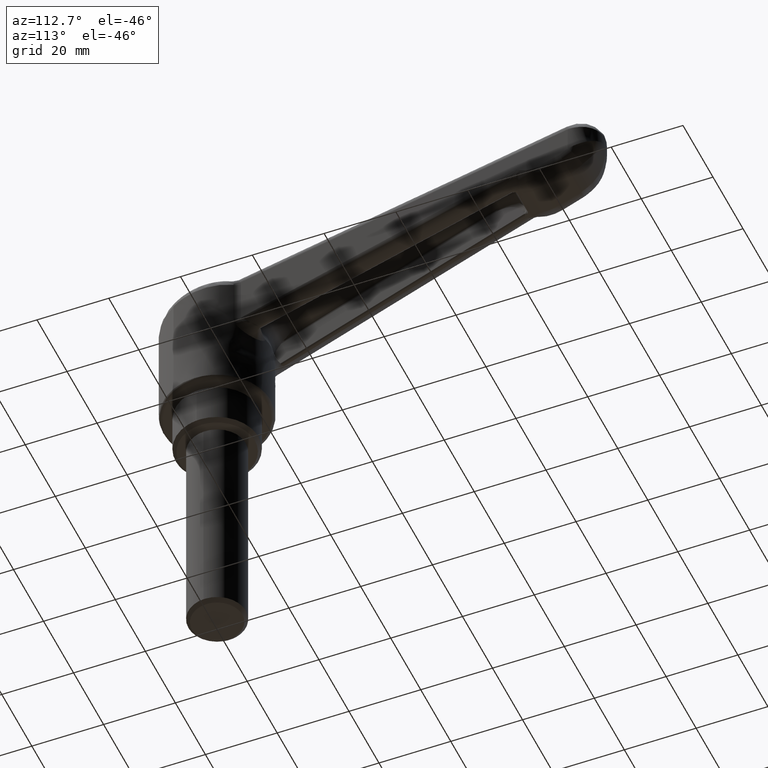
[diagram: clean part render]
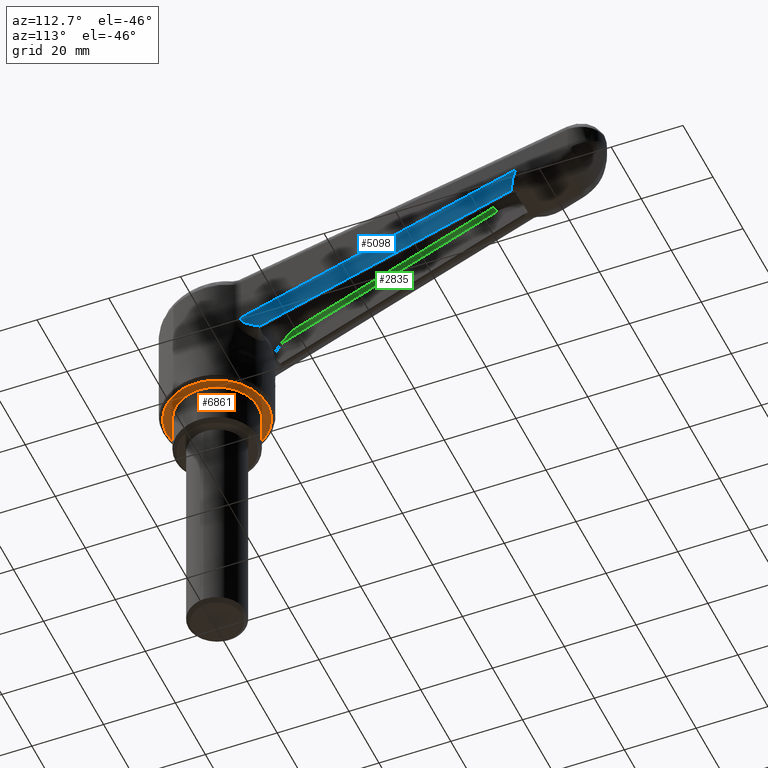
[diagram: same view with three faces highlighted in distinct colors, each labeled with its STEP entity id]
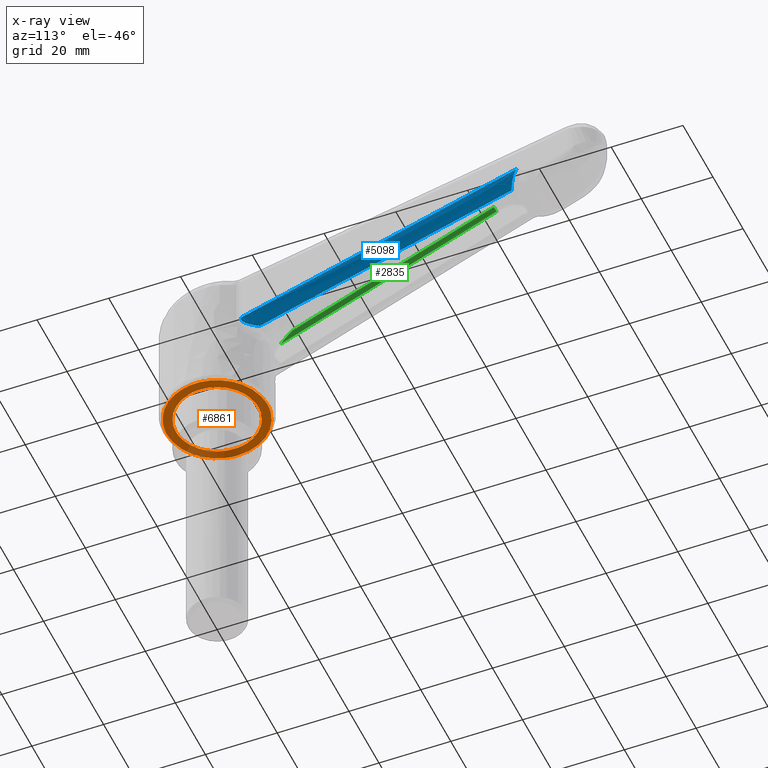
[diagram: x-ray of the same camera — body ghosted, the three highlighted faces saturated]
A machine part, auxiliary view with three faces highlighted in distinct colors.
The next image is the same camera in x-ray (body ghosted, the three faces saturated) — at least one of them is partly hidden behind the body in this view.
Their STEP definitions:

[orange] entity #6861 — the highlighted face is a freeform B-spline surface patch.
#1637=CARTESIAN_POINT('',(-0.902279600992910,-11.464549337921310,12.0));
#1638=VERTEX_POINT('',#1637);
#1644=CARTESIAN_POINT('',(-11.500000000000000,0.0,12.0));
#1645=VERTEX_POINT('',#1644);
#1646=CARTESIAN_POINT('',(-11.500000000000000,0.0,12.0));
#1647=CARTESIAN_POINT('',(-11.500000000000000,-10.630490653841152,12.000000000000004));
#1648=CARTESIAN_POINT('',(-0.902279600992910,-11.464549337921316,11.999999999999996));
#1656=(BOUNDED_CURVE()B_SPLINE_CURVE(2,(#1646,#1647,#1648),.UNSPECIFIED.,.F.,.U.)B_SPLINE_CURVE_WITH_KNOTS((3,3),(0.0,0.236331300629098),.UNSPECIFIED.)CURVE()GEOMETRIC_REPRESENTATION_ITEM()RATIONAL_B_SPLINE_CURVE((1.0,0.723120658609495,0.969723356164159))REPRESENTATION_ITEM(''));
#1657=EDGE_CURVE('',#1645,#1638,#1656,.T.);
#1659=CARTESIAN_POINT('',(0.902279600992912,11.464549337921319,12.0));
#1660=VERTEX_POINT('',#1659);
#1661=CARTESIAN_POINT('',(0.902279600992912,11.464549337921317,11.999999999999998));
#1662=CARTESIAN_POINT('',(0.451836230711461,11.500000000000000,12.000000000000004));
#1663=CARTESIAN_POINT('',(0.0,11.500000000000000,12.0));
#1664=CARTESIAN_POINT('',(-11.500000000000000,11.500000000000000,12.0));
#1665=CARTESIAN_POINT('',(-11.500000000000000,0.0,12.0));
#1673=(BOUNDED_CURVE()B_SPLINE_CURVE(2,(#1661,#1662,#1663,#1664,#1665),.UNSPECIFIED.,.F.,.U.)B_SPLINE_CURVE_WITH_KNOTS((3,2,3),(0.736331300629098,0.750000000000000,1.0),.UNSPECIFIED.)CURVE()GEOMETRIC_REPRESENTATION_ITEM()RATIONAL_B_SPLINE_CURVE((0.969723356164158,0.983986122577052,1.0,0.707106781186548,1.0))REPRESENTATION_ITEM(''));
#1674=EDGE_CURVE('',#1660,#1645,#1673,.T.);
#1750=CARTESIAN_POINT('',(11.500000000000000,0.0,12.0));
#1751=VERTEX_POINT('',#1750);
#1752=CARTESIAN_POINT('',(11.500000000000000,0.0,12.0));
#1753=CARTESIAN_POINT('',(11.500000000000000,10.630490653841154,12.0));
#1754=CARTESIAN_POINT('',(0.902279600992912,11.464549337921316,12.000000000000007));
#1762=(BOUNDED_CURVE()B_SPLINE_CURVE(2,(#1752,#1753,#1754),.UNSPECIFIED.,.F.,.U.)B_SPLINE_CURVE_WITH_KNOTS((3,3),(0.500000000000000,0.736331300629098),.UNSPECIFIED.)CURVE()GEOMETRIC_REPRESENTATION_ITEM()RATIONAL_B_SPLINE_CURVE((1.0,0.723120658609495,0.969723356164159))REPRESENTATION_ITEM(''));
#1763=EDGE_CURVE('',#1751,#1660,#1762,.T.);
#1765=CARTESIAN_POINT('',(-0.902279600992910,-11.464549337921317,11.999999999999996));
#1766=CARTESIAN_POINT('',(-0.451836230711460,-11.500000000000000,12.000000000000004));
#1767=CARTESIAN_POINT('',(0.0,-11.500000000000000,12.0));
#1768=CARTESIAN_POINT('',(11.500000000000000,-11.500000000000000,12.0));
#1769=CARTESIAN_POINT('',(11.500000000000000,0.0,12.0));
#1777=(BOUNDED_CURVE()B_SPLINE_CURVE(2,(#1765,#1766,#1767,#1768,#1769),.UNSPECIFIED.,.F.,.U.)B_SPLINE_CURVE_WITH_KNOTS((3,2,3),(0.236331300629098,0.250000000000000,0.500000000000000),.UNSPECIFIED.)CURVE()GEOMETRIC_REPRESENTATION_ITEM()RATIONAL_B_SPLINE_CURVE((0.969723356164159,0.983986122577052,1.0,0.707106781186548,1.0))REPRESENTATION_ITEM(''));
#1778=EDGE_CURVE('',#1638,#1751,#1777,.T.);
#2362=CARTESIAN_POINT('',(-13.995578656726069,-0.351821336638586,12.0));
#2363=VERTEX_POINT('',#2362);
#2377=CARTESIAN_POINT('',(14.0,0.0,12.0));
#2378=VERTEX_POINT('',#2377);
#2379=CARTESIAN_POINT('',(14.0,0.0,12.0));
#2380=CARTESIAN_POINT('',(13.999999999999998,-13.999999999999998,12.0));
#2381=CARTESIAN_POINT('',(0.0,-14.0,12.0));
#2382=CARTESIAN_POINT('',(-13.652490266018260,-14.0,11.999999999999998));
#2383=CARTESIAN_POINT('',(-13.995578656726073,-0.351821336638586,11.999999999999998));
#2391=(BOUNDED_CURVE()B_SPLINE_CURVE(2,(#2379,#2380,#2381,#2382,#2383),.UNSPECIFIED.,.F.,.U.)B_SPLINE_CURVE_WITH_KNOTS((3,2,3),(0.500000000000000,0.750000000000000,0.995579891763263),.UNSPECIFIED.)CURVE()GEOMETRIC_REPRESENTATION_ITEM()RATIONAL_B_SPLINE_CURVE((1.0,0.707106781186547,1.0,0.712285260102395,0.989826157666783))REPRESENTATION_ITEM(''));
#2392=EDGE_CURVE('',#2378,#2363,#2391,.T.);
#2394=CARTESIAN_POINT('',(-0.351821336560004,13.995578655624501,12.0));
#2395=VERTEX_POINT('',#2394);
#2396=CARTESIAN_POINT('',(-0.351821336560004,13.995578655624501,11.999999999999996));
#2397=CARTESIAN_POINT('',(-0.175938449938321,14.000000000000004,11.999999999999996));
#2398=CARTESIAN_POINT('',(0.0,14.0,12.0));
#2399=CARTESIAN_POINT('',(13.999999999999998,13.999999999999998,12.0));
#2400=CARTESIAN_POINT('',(14.0,0.0,12.0));
#2408=(BOUNDED_CURVE()B_SPLINE_CURVE(2,(#2396,#2397,#2398,#2399,#2400),.UNSPECIFIED.,.F.,.U.)B_SPLINE_CURVE_WITH_KNOTS((3,2,3),(0.245579891764534,0.250000000000000,0.500000000000000),.UNSPECIFIED.)CURVE()GEOMETRIC_REPRESENTATION_ITEM()RATIONAL_B_SPLINE_CURVE((0.989826157669656,0.994821521085642,1.0,0.707106781186547,1.0))REPRESENTATION_ITEM(''));
#2409=EDGE_CURVE('',#2395,#2378,#2408,.T.);
#2446=CARTESIAN_POINT('',(-14.0,0.0,12.0));
#2447=VERTEX_POINT('',#2446);
#2448=CARTESIAN_POINT('',(-14.0,0.0,12.0));
#2449=CARTESIAN_POINT('',(-13.999999999999998,13.652490266117491,12.0));
#2450=CARTESIAN_POINT('',(-0.351821336560004,13.995578655624508,12.000000000000004));
#2458=(BOUNDED_CURVE()B_SPLINE_CURVE(2,(#2448,#2449,#2450),.UNSPECIFIED.,.F.,.U.)B_SPLINE_CURVE_WITH_KNOTS((3,3),(0.0,0.245579891764534),.UNSPECIFIED.)CURVE()GEOMETRIC_REPRESENTATION_ITEM()RATIONAL_B_SPLINE_CURVE((1.0,0.712285260100905,0.989826157669656))REPRESENTATION_ITEM(''));
#2459=EDGE_CURVE('',#2447,#2395,#2458,.T.);
#2461=CARTESIAN_POINT('',(-13.995578656726078,-0.351821336638586,12.000000000000004));
#2462=CARTESIAN_POINT('',(-14.000000000000004,-0.175938449989205,11.999999999999996));
#2463=CARTESIAN_POINT('',(-14.0,0.0,12.0));
#2471=(BOUNDED_CURVE()B_SPLINE_CURVE(2,(#2461,#2462,#2463),.UNSPECIFIED.,.F.,.U.)B_SPLINE_CURVE_WITH_KNOTS((3,3),(0.995579891763262,1.0),.UNSPECIFIED.)CURVE()GEOMETRIC_REPRESENTATION_ITEM()RATIONAL_B_SPLINE_CURVE((0.989826157666782,0.994821521084152,1.0))REPRESENTATION_ITEM(''));
#2472=EDGE_CURVE('',#2363,#2447,#2471,.T.);
#6844=CARTESIAN_POINT('',(-15.398599945730570,15.393902819265220,12.0));
#6845=CARTESIAN_POINT('',(15.398600696749090,15.393902819265220,12.0));
#6846=CARTESIAN_POINT('',(-15.398599945730570,-15.397219584319060,12.0));
#6847=CARTESIAN_POINT('',(15.398600696749090,-15.397219584319060,12.0));
#6848=B_SPLINE_SURFACE_WITH_KNOTS('',1,1,((#6844,#6846),(#6845,#6847)),.UNSPECIFIED.,.F.,.F.,.U.,(2,2),(2,2),(0.0,30.797200642479659),(0.0,30.791122403584279),.UNSPECIFIED.);
#6849=ORIENTED_EDGE('',*,*,#2459,.T.);
#6850=ORIENTED_EDGE('',*,*,#2409,.T.);
#6851=ORIENTED_EDGE('',*,*,#2392,.T.);
#6852=ORIENTED_EDGE('',*,*,#2472,.T.);
#6853=EDGE_LOOP('',(#6849,#6850,#6851,#6852));
#6854=FACE_OUTER_BOUND('',#6853,.T.);
#6855=ORIENTED_EDGE('',*,*,#1763,.T.);
#6856=ORIENTED_EDGE('',*,*,#1674,.T.);
#6857=ORIENTED_EDGE('',*,*,#1657,.T.);
#6858=ORIENTED_EDGE('',*,*,#1778,.T.);
#6859=EDGE_LOOP('',(#6855,#6856,#6857,#6858));
#6860=FACE_BOUND('',#6859,.T.);
#6861=ADVANCED_FACE('',(#6854,#6860),#6848,.T.);

[blue] entity #5098 — the highlighted face is a freeform B-spline surface patch.
#3733=CARTESIAN_POINT('',(86.751688532695795,-8.037621317903300,62.176774970644807));
#3734=VERTEX_POINT('',#3733);
#3777=CARTESIAN_POINT('',(84.259056724530907,-5.171537693151341,58.119219735736600));
#3778=VERTEX_POINT('',#3777);
#3779=CARTESIAN_POINT('',(84.259056724531007,-5.171537693151341,58.119219735736600));
#3780=CARTESIAN_POINT('',(84.351970455523599,-5.402402874040035,58.153037563998367));
#3781=CARTESIAN_POINT('',(84.444074299749090,-5.623783285917354,58.215404639726437));
#3782=CARTESIAN_POINT('',(84.584964630661105,-5.941760406796505,58.346429758511441));
#3783=CARTESIAN_POINT('',(84.632369426582997,-6.045389311426457,58.396410892641761));
#3784=CARTESIAN_POINT('',(84.728643090022956,-6.247770437942194,58.508689682623100));
#3785=CARTESIAN_POINT('',(84.776822656220361,-6.345059846074616,58.570188796880053));
#3786=CARTESIAN_POINT('',(84.921748974158461,-6.624789933370407,58.768616065644501));
#3787=CARTESIAN_POINT('',(85.019134816053167,-6.795689152966753,58.919656982354212));
#3788=CARTESIAN_POINT('',(85.144160658802534,-6.990777168753496,59.129138610436243));
#3789=CARTESIAN_POINT('',(85.169349090613835,-7.028884029987110,59.172114349835610));
#3790=CARTESIAN_POINT('',(85.219680792462569,-7.102621520763133,59.259354479244799));
#3791=CARTESIAN_POINT('',(85.244876377347310,-7.138336233466596,59.303705087056990));
#3792=CARTESIAN_POINT('',(85.320633303119095,-7.242133502817627,59.438830161878784));
#3793=CARTESIAN_POINT('',(85.371365797982008,-7.306875004510300,59.531673586853287));
#3794=CARTESIAN_POINT('',(85.473683790620655,-7.427896668640199,59.722373053353010));
#3795=CARTESIAN_POINT('',(85.525268486021503,-7.484175342701922,59.820230492135913));
#3796=CARTESIAN_POINT('',(85.629664010785064,-7.588550461661448,60.020575440165949));
#3797=CARTESIAN_POINT('',(85.682651542344146,-7.636780944171973,60.123411454498843));
#3798=CARTESIAN_POINT('',(85.842384741990813,-7.768144997726100,60.435237051473557));
#3799=CARTESIAN_POINT('',(85.949953981486601,-7.838228224967408,60.647568238094692));
#3800=CARTESIAN_POINT('',(86.114892597340486,-7.919838918200507,60.970952042276153));
#3801=CARTESIAN_POINT('',(86.170466710152851,-7.943104837935039,61.079567946956892));
#3802=CARTESIAN_POINT('',(86.283116378614821,-7.982035630256475,61.298204143352010));
#3803=CARTESIAN_POINT('',(86.340297160418430,-7.997712254654759,61.408423533930559));
#3804=CARTESIAN_POINT('',(86.455636144875442,-8.021514762545762,61.628454766328467));
#3805=CARTESIAN_POINT('',(86.513858229254296,-8.029677472310366,61.738394579310771));
#3806=CARTESIAN_POINT('',(86.602236772255196,-8.036594981218716,61.903058426846897));
#3807=CARTESIAN_POINT('',(86.646687339948244,-8.038721039513254,61.985328975604610));
#3808=CARTESIAN_POINT('',(86.691570437833605,-8.038892371835265,62.067483181496932));
#3809=CARTESIAN_POINT('',(86.721593169846969,-8.038576639316444,62.122224108296187));
#3810=CARTESIAN_POINT('',(86.736738597633888,-8.038199830674271,62.149709927018627));
#3811=CARTESIAN_POINT('',(86.751688532695795,-8.037621317903110,62.176774970644807));
#3812=B_SPLINE_CURVE_WITH_KNOTS('',3,(#3779,#3780,#3781,#3782,#3783,#3784,#3785,#3786,#3787,#3788,#3789,#3790,#3791,#3792,#3793,#3794,#3795,#3796,#3797,#3798,#3799,#3800,#3801,#3802,#3803,#3804,#3805,#3806,#3807,#3808,#3809,#3810,#3811),.UNSPECIFIED.,.F.,.U.,(4,2,2,2,2,2,2,2,2,2,2,2,2,2,1,2,4),(0.0,0.124999999999996,0.187499999999994,0.249999999999991,0.374999999999986,0.406249999999987,0.437499999999988,0.499999999999990,0.562499999999992,0.624999999999994,0.749999999999998,0.812500000000000,0.875000000000002,0.937500000000004,0.968750000000004,0.984375000000002,1.0),.UNSPECIFIED.);
#3813=EDGE_CURVE('',#3778,#3734,#3812,.T.);
#4677=CARTESIAN_POINT('',(15.174490516233950,-7.844880665933810,32.974497092379202));
#4678=VERTEX_POINT('',#4677);
#4686=CARTESIAN_POINT('',(11.250690499999600,-10.959258864561560,34.696662421268712));
#4687=VERTEX_POINT('',#4686);
#4688=CARTESIAN_POINT('',(11.250690499999640,-10.959258864561541,34.696662421268648));
#4689=CARTESIAN_POINT('',(11.214732394132220,-10.960650323680570,34.571545030453301));
#4690=CARTESIAN_POINT('',(11.190997901050670,-10.956170973370821,34.444786910574663));
#4691=CARTESIAN_POINT('',(11.183735538796270,-10.939597529126740,34.283342363655578));
#4692=CARTESIAN_POINT('',(11.183430518311980,-10.935712649018400,34.250850296556273));
#4693=CARTESIAN_POINT('',(11.185309770592919,-10.926804507148971,34.186326461434263));
#4694=CARTESIAN_POINT('',(11.187486218074669,-10.921774016777769,34.154206180770167));
#4695=CARTESIAN_POINT('',(11.197944139549911,-10.904825919081480,34.058298991448837));
#4696=CARTESIAN_POINT('',(11.210010095721950,-10.891291322841150,33.996325256258153));
#4697=CARTESIAN_POINT('',(11.235640014682890,-10.867555496954260,33.906334576236681));
#4698=CARTESIAN_POINT('',(11.245438508010110,-10.859070582271290,33.876831025467091));
#4699=CARTESIAN_POINT('',(11.267526539223081,-10.840936087343771,33.818810151132851));
#4700=CARTESIAN_POINT('',(11.279866185760991,-10.831248946334661,33.790192439696142));
#4701=CARTESIAN_POINT('',(11.320221541780860,-10.800685634932201,33.706565277702460));
#4702=CARTESIAN_POINT('',(11.351336374304260,-10.778470336036939,33.654134761023208));
#4703=CARTESIAN_POINT('',(11.403393778905381,-10.742608546701099,33.579815513268379));
#4704=CARTESIAN_POINT('',(11.421692293269730,-10.730200495150900,33.555718188696389));
#4705=CARTESIAN_POINT('',(11.459462914476010,-10.704893016524199,33.509451394741568));
#4706=CARTESIAN_POINT('',(11.478981911355421,-10.691960473275641,33.487206176630117));
#4707=CARTESIAN_POINT('',(11.539210118633511,-10.652380583363691,33.422846149657097));
#4708=CARTESIAN_POINT('',(11.581580909401270,-10.624953702981280,33.383094532709329));
#4709=CARTESIAN_POINT('',(11.713961525863819,-10.539857549826239,33.271575828942979));
#4710=CARTESIAN_POINT('',(11.809632301710559,-10.479095032568530,33.207243002891040));
#4711=CARTESIAN_POINT('',(11.957534092921071,-10.384642073937959,33.123239222835842));
#4712=CARTESIAN_POINT('',(12.007722697528690,-10.352515149014661,33.097250442573269));
#4713=CARTESIAN_POINT('',(12.108553677152431,-10.287656127711470,33.049128363520992));
#4714=CARTESIAN_POINT('',(12.159298581046480,-10.254859486509140,33.026933679524781));
#4715=CARTESIAN_POINT('',(12.312251594809879,-10.155360117278640,32.965091835829213));
#4716=CARTESIAN_POINT('',(12.415164508423731,-10.087549209191030,32.930140405077267));
#4717=CARTESIAN_POINT('',(12.621947708701800,-9.948889259234885,32.869953277187797));
#4718=CARTESIAN_POINT('',(12.725826263841300,-9.878039890661611,32.844745074690870));
#4719=CARTESIAN_POINT('',(12.933989033906080,-9.733182032668113,32.802520699296750));
#4720=CARTESIAN_POINT('',(13.038557346798770,-9.658966748438701,32.785487920298863));
#4721=CARTESIAN_POINT('',(13.245980627414720,-9.508507157250238,32.758951260443631));
#4722=CARTESIAN_POINT('',(13.348883322962120,-9.432241359424932,32.749417254371117));
#4723=CARTESIAN_POINT('',(13.655006081568910,-9.200140905427874,32.730885444996673));
#4724=CARTESIAN_POINT('',(13.855636418886821,-9.040998116969112,32.731846361074048));
#4725=CARTESIAN_POINT('',(14.150911202024220,-8.795054570629132,32.751694555715218));
#4726=CARTESIAN_POINT('',(14.248392394889320,-8.711870103293911,32.761411032450432));
#4727=CARTESIAN_POINT('',(14.441398603714299,-8.543007663724891,32.787113188679257));
#4728=CARTESIAN_POINT('',(14.536769806875821,-8.457456076945329,32.803091511971211));
#4729=CARTESIAN_POINT('',(14.817874738199350,-8.198859676342911,32.860263908854137));
#4730=CARTESIAN_POINT('',(14.999218603338781,-8.023314916090694,32.910703341056632));
#4731=CARTESIAN_POINT('',(15.174490516233950,-7.844880665933810,32.974497092379202));
#4732=B_SPLINE_CURVE_WITH_KNOTS('',3,(#4688,#4689,#4690,#4691,#4692,#4693,#4694,#4695,#4696,#4697,#4698,#4699,#4700,#4701,#4702,#4703,#4704,#4705,#4706,#4707,#4708,#4709,#4710,#4711,#4712,#4713,#4714,#4715,#4716,#4717,#4718,#4719,#4720,#4721,#4722,#4723,#4724,#4725,#4726,#4727,#4728,#4729,#4730,#4731),.UNSPECIFIED.,.F.,.U.,(4,2,2,2,2,2,2,2,2,2,2,2,2,2,2,2,2,2,2,2,2,4),(0.0,0.062500000000007,0.078125000000009,0.093750000000011,0.125000000000015,0.140625000000017,0.156250000000018,0.187500000000021,0.203125000000022,0.218750000000022,0.250000000000020,0.312500000000018,0.343750000000017,0.375000000000016,0.437500000000015,0.500000000000013,0.562500000000012,0.625000000000010,0.750000000000007,0.812500000000005,0.875000000000003,1.0),.UNSPECIFIED.);
#4733=EDGE_CURVE('',#4687,#4678,#4732,.T.);
#5070=CARTESIAN_POINT('',(88.618883602335430,-7.964338283547040,62.939956251649178));
#5071=CARTESIAN_POINT('',(9.021174527439618,-11.044504923999950,33.968763008569503));
#5072=CARTESIAN_POINT('',(89.720529337560478,-8.005985306788981,59.917636935019068));
#5073=CARTESIAN_POINT('',(10.122820262664709,-11.086151947241891,30.946443691939397));
#5074=CARTESIAN_POINT('',(89.548322037447861,-4.796199491644764,60.049513842955662));
#5075=CARTESIAN_POINT('',(9.950612962552095,-7.876366132097672,31.078320599875990));
#5083=(BOUNDED_SURFACE()B_SPLINE_SURFACE(1,2,((#5070,#5072,#5074),(#5071,#5073,#5075)),.UNSPECIFIED.,.F.,.F.,.U.)B_SPLINE_SURFACE_WITH_KNOTS((2,2),(3,3),(0.0,84.762095033290549),(0.0,5.217748499531206),.UNSPECIFIED.)GEOMETRIC_REPRESENTATION_ITEM()RATIONAL_B_SPLINE_SURFACE(((1.0,0.681998360062498,1.0),(1.0,0.681998360062498,1.0)))REPRESENTATION_ITEM('')SURFACE());
#5084=CARTESIAN_POINT('',(84.259056724530907,-5.171537693151341,58.119219735736600));
#5085=CARTESIAN_POINT('',(15.174490516233950,-7.844880665933810,32.974497092379202));
#5086=QUASI_UNIFORM_CURVE('',1,(#5084,#5085),.UNSPECIFIED.,.F.,.U.);
#5087=EDGE_CURVE('',#3778,#4678,#5086,.T.);
#5088=ORIENTED_EDGE('',*,*,#5087,.F.);
#5089=ORIENTED_EDGE('',*,*,#3813,.T.);
#5090=CARTESIAN_POINT('',(11.250690499999600,-10.959258864561560,34.696662421268712));
#5091=CARTESIAN_POINT('',(86.751688532695795,-8.037621317903300,62.176774970644807));
#5092=QUASI_UNIFORM_CURVE('',1,(#5090,#5091),.UNSPECIFIED.,.F.,.U.);
#5093=EDGE_CURVE('',#4687,#3734,#5092,.T.);
#5094=ORIENTED_EDGE('',*,*,#5093,.F.);
#5095=ORIENTED_EDGE('',*,*,#4733,.T.);
#5096=EDGE_LOOP('',(#5088,#5089,#5094,#5095));
#5097=FACE_OUTER_BOUND('',#5096,.T.);
#5098=ADVANCED_FACE('',(#5097),#5083,.T.);

[green] entity #2835 — the highlighted face is a freeform B-spline surface patch.
#2733=CARTESIAN_POINT('',(76.062158428495806,4.355981640296450,62.585037410695499));
#2734=VERTEX_POINT('',#2733);
#2735=CARTESIAN_POINT('',(75.685990866509400,3.356642118530815,63.512301389045803));
#2736=VERTEX_POINT('',#2735);
#2737=CARTESIAN_POINT('',(76.062158428495820,4.355981640296391,62.585037410695513));
#2738=CARTESIAN_POINT('',(75.720138322447980,4.355981640296251,63.524730045049282));
#2739=CARTESIAN_POINT('',(75.685990866509385,3.356642118530705,63.512301389045817));
#2747=(BOUNDED_CURVE()B_SPLINE_CURVE(2,(#2737,#2738,#2739),.UNSPECIFIED.,.F.,.U.)CURVE()GEOMETRIC_REPRESENTATION_ITEM()QUASI_UNIFORM_CURVE()RATIONAL_B_SPLINE_CURVE((1.0,0.707106781186597,1.0))REPRESENTATION_ITEM(''));
#2748=EDGE_CURVE('',#2734,#2736,#2747,.T.);
#2780=CARTESIAN_POINT('',(77.600027712780829,4.296474764608351,63.116919059139761));
#2781=CARTESIAN_POINT('',(13.346830902784051,6.782859808992606,39.730670850456832));
#2782=CARTESIAN_POINT('',(77.234340301198898,4.324527564388222,64.124619613706955));
#2783=CARTESIAN_POINT('',(12.981143491202140,6.810912608772480,40.738371405024033));
#2784=CARTESIAN_POINT('',(77.213754845885774,3.253887113828167,64.067349072465106));
#2785=CARTESIAN_POINT('',(12.960558035889010,5.740272158212431,40.681100863782177));
#2793=(BOUNDED_SURFACE()B_SPLINE_SURFACE(1,2,((#2780,#2782,#2784),(#2781,#2783,#2785)),.UNSPECIFIED.,.F.,.F.,.U.)B_SPLINE_SURFACE_WITH_KNOTS((2,2),(3,3),(0.0,68.422014119515978),(0.0,1.0),.UNSPECIFIED.)GEOMETRIC_REPRESENTATION_ITEM()RATIONAL_B_SPLINE_SURFACE(((1.0,0.681998360062498,1.0),(1.0,0.681998360062498,1.0)))REPRESENTATION_ITEM('')SURFACE());
#2794=CARTESIAN_POINT('',(14.905040703340241,6.722558720019720,40.325669692720851));
#2795=VERTEX_POINT('',#2794);
#2796=CARTESIAN_POINT('',(76.062158428495806,4.355981640296450,62.585037410695499));
#2797=CARTESIAN_POINT('',(14.905040703340241,6.722558720019720,40.325669692720851));
#2798=QUASI_UNIFORM_CURVE('',1,(#2796,#2797),.UNSPECIFIED.,.F.,.U.);
#2799=EDGE_CURVE('',#2734,#2795,#2798,.T.);
#2800=ORIENTED_EDGE('',*,*,#2799,.F.);
#2801=ORIENTED_EDGE('',*,*,#2748,.T.);
#2802=CARTESIAN_POINT('',(18.620410927119948,5.564890292236240,42.742131453666552));
#2803=VERTEX_POINT('',#2802);
#2804=CARTESIAN_POINT('',(18.620410927119948,5.564890292236240,42.742131453666552));
#2805=CARTESIAN_POINT('',(75.685990866509400,3.356642118530815,63.512301389045803));
#2806=QUASI_UNIFORM_CURVE('',1,(#2804,#2805),.UNSPECIFIED.,.F.,.U.);
#2807=EDGE_CURVE('',#2803,#2736,#2806,.T.);
#2808=ORIENTED_EDGE('',*,*,#2807,.F.);
#2809=CARTESIAN_POINT('',(14.905040703340241,6.722558720019720,40.325669692720851));
#2810=CARTESIAN_POINT('',(15.036463781072831,6.716267714259852,40.470422828603454));
#2811=CARTESIAN_POINT('',(15.172450251287200,6.697880135399334,40.607126287408263));
#2812=CARTESIAN_POINT('',(15.451798717533620,6.646558988264286,40.868721259206410));
#2813=CARTESIAN_POINT('',(15.595188528189169,6.613440298835755,40.993537039875513));
#2814=CARTESIAN_POINT('',(15.815255085085010,6.555954932629243,41.173265359712722));
#2815=CARTESIAN_POINT('',(15.889445882350691,6.535468544126808,41.231914363066068));
#2816=CARTESIAN_POINT('',(16.039446079886879,6.492208729793969,41.346836875726659));
#2817=CARTESIAN_POINT('',(16.115354956833510,6.469403246954776,41.403180875515083));
#2818=CARTESIAN_POINT('',(16.344753819672729,6.398202493733151,41.568293750613762));
#2819=CARTESIAN_POINT('',(16.499382106379901,6.347221441167145,41.672804591687623));
#2820=CARTESIAN_POINT('',(16.968425619218380,6.186556160225632,41.971422325489172));
#2821=CARTESIAN_POINT('',(17.287955963934021,6.069242245437867,42.150758793344622));
#2822=CARTESIAN_POINT('',(17.778596674444248,5.885040159157819,42.392898676886681));
#2823=CARTESIAN_POINT('',(17.944045106555059,5.822230837549421,42.469089566247348));
#2824=CARTESIAN_POINT('',(18.195314350609010,5.726604031130633,42.576608944181039));
#2825=CARTESIAN_POINT('',(18.321724342187348,5.678436611645874,42.628674054922968));
#2826=CARTESIAN_POINT('',(18.449355508171490,5.629866948711131,42.678175633812202));
#2827=CARTESIAN_POINT('',(18.534721751388531,5.597412307889300,42.710602931607937));
#2828=CARTESIAN_POINT('',(18.577714762902971,5.581080738945504,42.726591322692407));
#2829=CARTESIAN_POINT('',(18.620410927119998,5.564890292236240,42.742131453666602));
#2830=B_SPLINE_CURVE_WITH_KNOTS('',3,(#2809,#2810,#2811,#2812,#2813,#2814,#2815,#2816,#2817,#2818,#2819,#2820,#2821,#2822,#2823,#2824,#2825,#2826,#2827,#2828,#2829),.UNSPECIFIED.,.F.,.U.,(4,2,2,2,2,2,2,2,1,2,4),(0.0,0.125000000000001,0.250000000000002,0.312500000000001,0.375000000000001,0.500000000000002,0.750000000000003,0.875000000000001,0.937500000000001,0.968750000000001,1.0),.UNSPECIFIED.);
#2831=EDGE_CURVE('',#2795,#2803,#2830,.T.);
#2832=ORIENTED_EDGE('',*,*,#2831,.F.);
#2833=EDGE_LOOP('',(#2800,#2801,#2808,#2832));
#2834=FACE_OUTER_BOUND('',#2833,.T.);
#2835=ADVANCED_FACE('',(#2834),#2793,.F.);